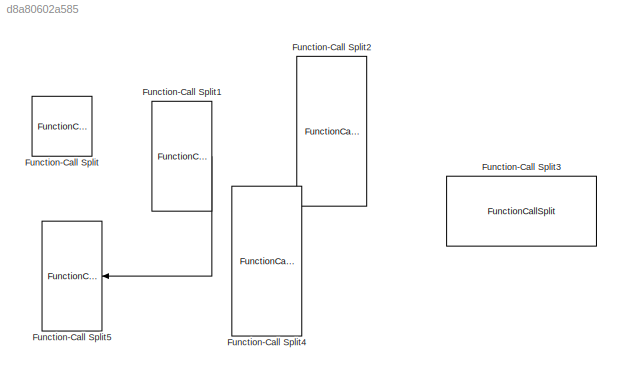
MODEL slx_d8a80602a585
KIND model
CONFIG AbsTol = auto
CONFIG FixedStep = auto
CONFIG MaxStep = auto
CONFIG MinStep = auto
CONFIG RelTol = 1e-3
CONFIG SampleTimeConstraint = Unconstrained
CONFIG Solver = VariableStepAuto
CONFIG SolverMode = Auto
CONFIG SolverName = VariableStepAuto
CONFIG StartTime = 0.0
CONFIG StopTime = 10.0
BLOCK [FunctionCallSplit] Function-Call Split
BLOCK [FunctionCallSplit] Function-Call Split1
BLOCK [FunctionCallSplit] Function-Call Split2
BLOCK [FunctionCallSplit] Function-Call Split3
BLOCK [FunctionCallSplit] Function-Call Split4
BLOCK [FunctionCallSplit] Function-Call Split5
LINE Function-Call Split1:1 -> Function-Call Split5:1
